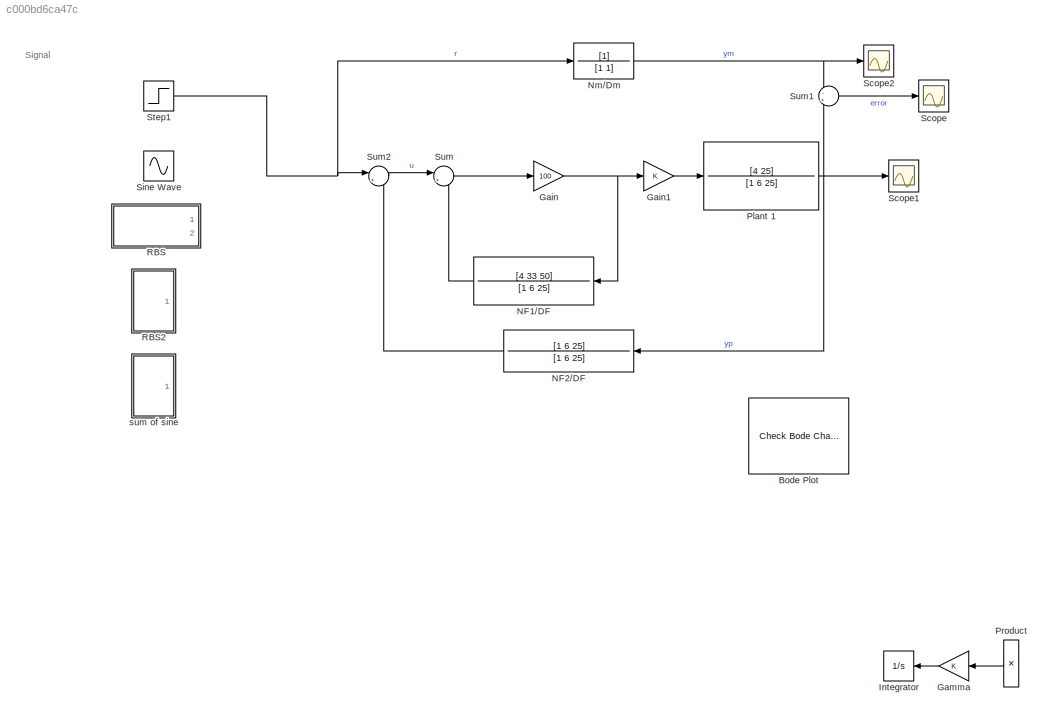
MODEL slx_c000bd6ca47c
KIND model
CONFIG AbsTol = auto
CONFIG EnableMultiTasking = off
CONFIG FixedStep = auto
CONFIG MaxStep = auto
CONFIG MinStep = auto
CONFIG RelTol = 1e-3
CONFIG SampleTimeConstraint = Unconstrained
CONFIG Solver = VariableStepAuto
CONFIG SolverName = VariableStepAuto
CONFIG StartTime = 0.0
CONFIG StopTime = 10.0
BLOCK [Reference] Bode Plot  REF=slctrlblks/Model Verification/Check Bode 
Characteristics
  InstantiateOnLoad = on
  Ports = []
  SourceBlock = slctrlblks/Model Verification/Check Bode \nCharacteristics
  SourceProductBaseCode = SD
  SourceProductName = Simulink Control Design
  SourceType = Checks_Bode
BLOCK [Gain] Gain
  Gain = 100
  OutDataTypeStr = Inherit: Inherit via internal rule
  ParamDataTypeStr = Inherit: Inherit via internal rule
  SaturateOnIntegerOverflow = off
BLOCK [Gain] Gain1
  OutDataTypeStr = Inherit: Inherit via internal rule
  ParamDataTypeStr = Inherit: Inherit via internal rule
  SaturateOnIntegerOverflow = off
BLOCK [Gain] Gamma 
  Commented = on
  OutDataTypeStr = Inherit: Inherit via internal rule
  ParamDataTypeStr = Inherit: Inherit via internal rule
  SaturateOnIntegerOverflow = off
BLOCK [Integrator] Integrator
  Commented = on
  Ports = [1, 1]
BLOCK [TransferFcn] NF1//DF
  Denominator = [1 6 25]
  Numerator = [4 33 50]
BLOCK [TransferFcn] NF2//DF
  Denominator = [1 6 25]
  Numerator = [1 6 25]
BLOCK [TransferFcn] Nm//Dm 
  Denominator = [1 1]
BLOCK [TransferFcn] Plant 1
  Denominator = [1 6 25]
  Numerator = [4 25]
BLOCK [Product] Product
  Commented = on
  InputSameDT = off
  OutDataTypeStr = Inherit: Inherit via internal rule
  Ports = [2, 1]
  RndMeth = Floor
  SaturateOnIntegerOverflow = off
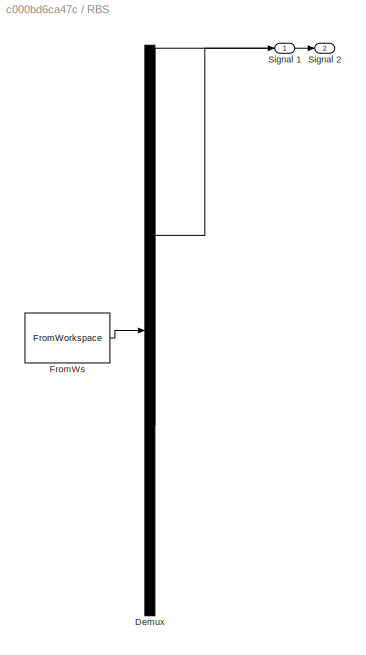
BLOCK [SubSystem] RBS 
  ClipboardFcn = sigbuilder_block('clipboard');
  CloseFcn = sigbuilder_block('close');
  Commented = on
  ContinueFcn = sigbuilder_block('continue');
  CopyFcn = sigbuilder_block('copy');
  DeleteFcn = sigbuilder_block('delete');
  LoadFcn = sigbuilder_block('load');
  MaskHideContents = on
  ModelCloseFcn = sigbuilder_block('modelClose');
  NameChangeFcn = sigbuilder_block('namechange');
  OpenFcn = sigbuilder_block('open',[215 62.5 550.5 362.5 ]);
  PauseFcn = sigbuilder_block('pause');
  Ports = [0, 2]
  PreSaveFcn = sigbuilder_block('preSave');
  RequestExecContextInheritance = off
  StartFcn = sigbuilder_block('start');
  StopFcn = sigbuilder_block('stop');
  Tag = STV Subsys
BLOCK [Demux] RBS /Demux
  Outputs = 2
  Ports = [1, 2]
  Tag = STV Demux
BLOCK [FromWorkspace] RBS /FromWs
  SampleTime = 0
  Tag = STV FromWs
  VariableName = tuvar
  ZeroCross = on
BLOCK [Outport] RBS /Signal 1
  IconDisplay = Port number
  Tag = STV Outport
BLOCK [Outport] RBS /Signal 2
  IconDisplay = Port number
  Port = 2
  Tag = STV Outport
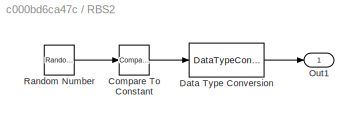
BLOCK [SubSystem] RBS2
  Commented = on
  Ports = [0, 1]
  RequestExecContextInheritance = off
BLOCK [Reference] RBS2/Compare To Constant  REF=simulink/Logic and Bit
Operations/Compare
To Constant
  Ports = [1, 1]
  SourceBlock = simulink/Logic and Bit\nOperations/Compare\nTo Constant
  SourceProductBaseCode = SL
  SourceProductName = Simulink
  SourceType = Compare To Constant
BLOCK [DataTypeConversion] RBS2/Data Type Conversion
  OutDataTypeStr = double
  RndMeth = Floor
  SaturateOnIntegerOverflow = off
BLOCK [Outport] RBS2/Out1
  IconDisplay = Port number
BLOCK [RandomNumber] RBS2/Random Number
  Mean = 1
  SampleTime = 10
BLOCK [Scope] Scope
  Floating = off
  NumInputPorts = 1
  Ports = [1]
  ScopeSpecificationString = Simulink.scopes.TimeScopeBlockCfg('CurrentConfiguration', extmgr.ConfigurationSet(extmgr.Configuration('Core','General UI',true),extmgr.Configuration('Core','Source UI',true),extmgr.Configuration('Sources','WiredSimulink',true,'DataLoggingVariableName','ScopeData1'),extmgr.Configuration('Visuals','Time Domain',true,'SerializedDisplays',{struct('MinYLimReal','-0.01113','MaxYLimReal','0.00124','YLab...<+1434ch>
BLOCK [Scope] Scope1
  Floating = off
  NumInputPorts = 1
  Ports = [1]
  ScopeSpecificationString = Simulink.scopes.TimeScopeBlockCfg('CurrentConfiguration', extmgr.ConfigurationSet(extmgr.Configuration('Core','General UI',true),extmgr.Configuration('Core','Source UI',true),extmgr.Configuration('Sources','WiredSimulink',true,'DataLoggingVariableName','ScopeData2'),extmgr.Configuration('Visuals','Time Domain',true,'SerializedDisplays',{struct('MinYLimReal','-0.12375','MaxYLimReal','1.11374','YLab...<+1431ch>
BLOCK [Scope] Scope2
  Floating = off
  NumInputPorts = 1
  Ports = [1]
  ScopeSpecificationString = Simulink.scopes.TimeScopeBlockCfg('CurrentConfiguration', extmgr.ConfigurationSet(extmgr.Configuration('Core','General UI',true),extmgr.Configuration('Core','Source UI',true),extmgr.Configuration('Sources','WiredSimulink',true),extmgr.Configuration('Visuals','Time Domain',true,'SerializedDisplays',{struct('MinYLimReal','-0.12498','MaxYLimReal','1.12486','YLabelReal','','MinYLimMag','0.00000','MaxY...<+1347ch>
BLOCK [Sin] Sine Wave
  Commented = on
  Frequency = 0.1
  Ports = [0, 1]
  SampleTime = 0
BLOCK [Step] Step1
  SampleTime = 0
BLOCK [Sum] Sum
  IconShape = round
  InputSameDT = off
  Inputs = |+-
  OutDataTypeStr = Inherit: Inherit via internal rule
  Ports = [2, 1]
  SaturateOnIntegerOverflow = off
BLOCK [Sum] Sum1
  IconShape = round
  InputSameDT = off
  Inputs = -+
  OutDataTypeStr = Inherit: Inherit via internal rule
  Ports = [2, 1]
  SaturateOnIntegerOverflow = off
BLOCK [Sum] Sum2
  IconShape = round
  InputSameDT = off
  Inputs = |++
  OutDataTypeStr = Inherit: Inherit via internal rule
  Ports = [2, 1]
  SaturateOnIntegerOverflow = off
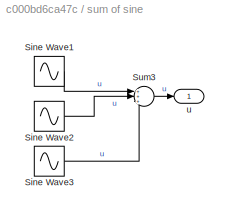
BLOCK [SubSystem] sum of sine
  Commented = on
  Ports = [0, 1]
  RequestExecContextInheritance = off
BLOCK [Sin] sum of sine/Sine Wave1
  Frequency = 0.1
  Phase = 0.1
  Ports = [0, 1]
  SampleTime = 0
BLOCK [Sin] sum of sine/Sine Wave2
  Ports = [0, 1]
  SampleTime = 0
BLOCK [Sin] sum of sine/Sine Wave3
  Frequency = 2
  Ports = [0, 1]
  SampleTime = 0
BLOCK [Sum] sum of sine/Sum3
  IconShape = round
  InputSameDT = off
  Inputs = +++
  OutDataTypeStr = Inherit: Inherit via internal rule
  Ports = [3, 1]
  SaturateOnIntegerOverflow = off
BLOCK [Outport] sum of sine/u
  IconDisplay = Port number
ANNOTATION (root): Signal
LINE Gain1:1 -> Plant 1:1
NET Gain:1 -> Gain1:1, NF1//DF:1
LINE Gamma :1 -> Integrator:1
LINE NF1//DF:1 -> Sum:2
LINE NF2//DF:1 -> Sum2:2
NET Nm//Dm :1 -> Scope2:1, Sum1:1
NET Plant 1:1 -> NF2//DF:1, Scope1:1, Sum1:2
LINE Product:1 -> Gamma :1
LINE RBS2/Compare To Constant:1 -> RBS2/Data Type Conversion:1
LINE RBS2/Data Type Conversion:1 -> RBS2/Out1:1
LINE RBS2/Random Number:1 -> RBS2/Compare To Constant:1
NET Step1:1 -> Nm//Dm :1, Sum2:1
LINE Sum1:1 -> Scope:1
LINE Sum2:1 -> Sum:1
LINE Sum:1 -> Gain:1
LINE sum of sine/Sine Wave1:1 -> sum of sine/Sum3:1
LINE sum of sine/Sine Wave2:1 -> sum of sine/Sum3:2
LINE sum of sine/Sine Wave3:1 -> sum of sine/Sum3:3
LINE sum of sine/Sum3:1 -> sum of sine/u:1
note: NET lines group one-source signal fan-out (src -> all destinations, sorted); 1:1 wires keep LINE
